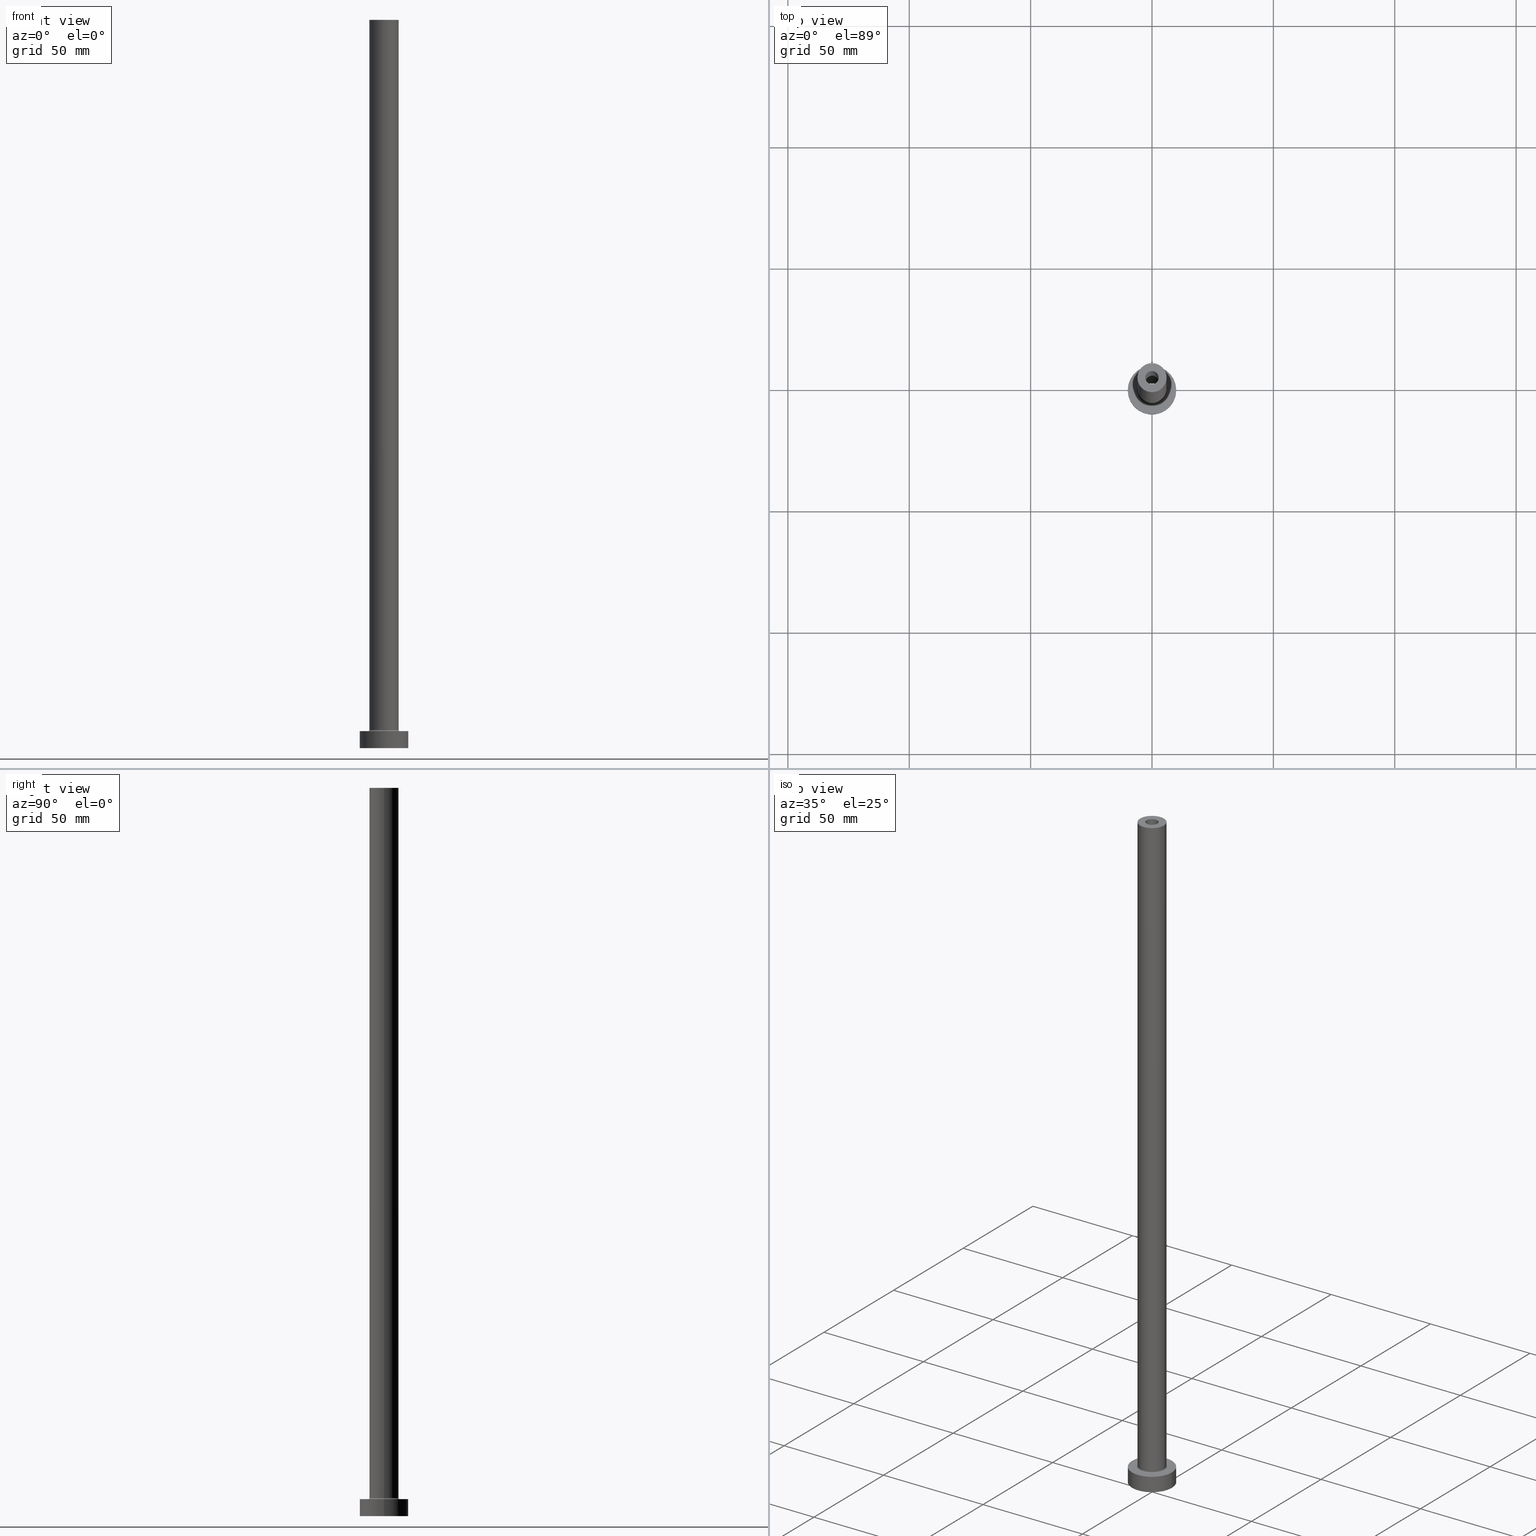
[diagram: canonical four-view strip — front | top / right | iso, engineering-drawing reading convention]
A machine part, canonical four-view strip (front | top / right | iso — engineering-drawing reading convention). The complete STEP part file that produces these views, byte-faithful:
ISO-10303-21;
HEADER;
FILE_DESCRIPTION (( 'STEP AP203' ),
    '1' );
FILE_NAME ('1d51.STEP',
    '2023-02-13T15:54:29',
    ( '' ),
    ( '' ),
    'SwSTEP 2.0',
    'SolidWorks 2019',
    '' );
FILE_SCHEMA (( 'CONFIG_CONTROL_DESIGN' ));
ENDSEC;

DATA;
#1 = VERTEX_POINT ( 'NONE', #119 ) ;
#2 = CIRCLE ( 'NONE', #319, 10.00000000000000000 ) ;
#3 = DIRECTION ( 'NONE',  ( -1.000000000000000000, 0.000000000000000000, 0.000000000000000000 ) ) ;
#4 = CARTESIAN_POINT ( 'NONE',  ( 6.000000000000000888, 7.347880794884120722E-16, 300.0000000000000000 ) ) ;
#5 = EDGE_CURVE ( 'NONE', #393, #382, #48, .T. ) ;
#6 = ORIENTED_EDGE ( 'NONE', *, *, #35, .T. ) ;
#7 = PRODUCT_DEFINITION ( 'NEZN�M�', '', #233, #377 ) ;
#8 = DIRECTION ( 'NONE',  ( -0.000000000000000000, -0.000000000000000000, -1.000000000000000000 ) ) ;
#9 = APPROVAL_PERSON_ORGANIZATION ( #197, #249, #447 ) ;
#10 = CYLINDRICAL_SURFACE ( 'NONE', #345, 2.750000000000000000 ) ;
#11 = ORIENTED_EDGE ( 'NONE', *, *, #144, .F. ) ;
#12 = DIRECTION ( 'NONE',  ( -1.000000000000000000, 0.000000000000000000, 0.000000000000000000 ) ) ;
#13 = PERSON_AND_ORGANIZATION ( #51, #128 ) ;
#14 = FACE_BOUND ( 'NONE', #344, .T. ) ;
#15 = EDGE_CURVE ( 'NONE', #341, #301, #137, .T. ) ;
#16 = DIRECTION ( 'NONE',  ( 1.000000000000000000, 0.000000000000000000, 0.000000000000000000 ) ) ;
#17 = DIRECTION ( 'NONE',  ( 0.000000000000000000, 0.000000000000000000, -1.000000000000000000 ) ) ;
#18 = PLANE ( 'NONE',  #419 ) ;
#19 = VERTEX_POINT ( 'NONE', #160 ) ;
#20 = AXIS2_PLACEMENT_3D ( 'NONE', #439, #333, #154 ) ;
#21 = DIRECTION ( 'NONE',  ( 1.000000000000000000, 0.000000000000000000, -0.000000000000000000 ) ) ;
#22 = EDGE_CURVE ( 'NONE', #371, #434, #408, .T. ) ;
#23 = DIRECTION ( 'NONE',  ( -0.000000000000000000, -0.000000000000000000, -1.000000000000000000 ) ) ;
#24 = CIRCLE ( 'NONE', #391, 0.5000000000000004441 ) ;
#25 = LOCAL_TIME ( 16, 54, 29.00000000000000000, #79 ) ;
#26 = DIRECTION ( 'NONE',  ( 0.000000000000000000, 0.000000000000000000, 1.000000000000000000 ) ) ;
#27 = DIRECTION ( 'NONE',  ( 0.000000000000000000, 0.000000000000000000, 1.000000000000000000 ) ) ;
#28 = EDGE_LOOP ( 'NONE', ( #368, #311, #276, #39 ) ) ;
#29 = DIRECTION ( 'NONE',  ( 0.000000000000000000, 0.000000000000000000, 1.000000000000000000 ) ) ;
#30 = ORIENTED_EDGE ( 'NONE', *, *, #5, .F. ) ;
#31 = FACE_OUTER_BOUND ( 'NONE', #234, .T. ) ;
#32 = CC_DESIGN_DATE_AND_TIME_ASSIGNMENT ( #40, #186, ( #7 ) ) ;
#33 = CIRCLE ( 'NONE', #109, 2.899999999999999911 ) ;
#34 = VECTOR ( 'NONE', #412, 1000.000000000000000 ) ;
#35 = EDGE_CURVE ( 'NONE', #42, #356, #357, .T. ) ;
#36 = DIRECTION ( 'NONE',  ( -1.000000000000000000, 0.000000000000000000, 0.000000000000000000 ) ) ;
#37 = DIRECTION ( 'NONE',  ( 0.000000000000000000, 0.000000000000000000, 1.000000000000000000 ) ) ;
#38 = CC_DESIGN_PERSON_AND_ORGANIZATION_ASSIGNMENT ( #427, #296, ( #83 ) ) ;
#39 = ORIENTED_EDGE ( 'NONE', *, *, #108, .F. ) ;
#40 = DATE_AND_TIME ( #152, #25 ) ;
#41 = CARTESIAN_POINT ( 'NONE',  ( 0.000000000000000000, 0.000000000000000000, 255.0000000000000000 ) ) ;
#42 = VERTEX_POINT ( 'NONE', #351 ) ;
#43 = AXIS2_PLACEMENT_3D ( 'NONE', #350, #56, #208 ) ;
#44 = FACE_OUTER_BOUND ( 'NONE', #236, .T. ) ;
#45 = DIRECTION ( 'NONE',  ( 0.000000000000000000, 0.000000000000000000, -1.000000000000000000 ) ) ;
#46 = ORIENTED_EDGE ( 'NONE', *, *, #438, .F. ) ;
#47 = EDGE_CURVE ( 'NONE', #409, #180, #426, .T. ) ;
#48 = CIRCLE ( 'NONE', #100, 6.500000000000000888 ) ;
#49 = DIRECTION ( 'NONE',  ( 0.000000000000000000, 0.000000000000000000, 1.000000000000000000 ) ) ;
#50 = ORIENTED_EDGE ( 'NONE', *, *, #219, .T. ) ;
#51 = PERSON ( 'NEUR�EN�', 'NEUR�EN�', 'NEUR�EN�', ('NEUR�EN�'), ('NEUR�EN�'), ('NEUR�EN�') ) ;
#52 = FACE_OUTER_BOUND ( 'NONE', #335, .T. ) ;
#53 = ORIENTED_EDGE ( 'NONE', *, *, #176, .F. ) ;
#54 = FACE_BOUND ( 'NONE', #295, .T. ) ;
#55 = EDGE_CURVE ( 'NONE', #171, #19, #387, .T. ) ;
#56 = DIRECTION ( 'NONE',  ( -0.000000000000000000, -0.000000000000000000, -1.000000000000000000 ) ) ;
#57 = DIRECTION ( 'NONE',  ( 1.000000000000000000, 0.000000000000000000, 0.000000000000000000 ) ) ;
#58 = FACE_OUTER_BOUND ( 'NONE', #28, .T. ) ;
#59 = CARTESIAN_POINT ( 'NONE',  ( 0.000000000000000000, 0.000000000000000000, 300.0000000000000000 ) ) ;
#60 = VECTOR ( 'NONE', #308, 1000.000000000000000 ) ;
#61 = ORIENTED_EDGE ( 'NONE', *, *, #354, .F. ) ;
#62 = DIRECTION ( 'NONE',  ( 1.000000000000000000, 0.000000000000000000, 0.000000000000000000 ) ) ;
#63 = ORIENTED_EDGE ( 'NONE', *, *, #153, .F. ) ;
#64 = CALENDAR_DATE ( 2023, 13, 2 ) ;
#65 = EDGE_CURVE ( 'NONE', #19, #171, #156, .T. ) ;
#66 = DIRECTION ( 'NONE',  ( -0.000000000000000000, -0.000000000000000000, -1.000000000000000000 ) ) ;
#67 = EDGE_LOOP ( 'NONE', ( #304, #218, #107, #61 ) ) ;
#68 = AXIS2_PLACEMENT_3D ( 'NONE', #132, #26, #274 ) ;
#69 = ADVANCED_FACE ( 'NONE', ( #204, #318 ), #18, .F. ) ;
#70 = AXIS2_PLACEMENT_3D ( 'NONE', #416, #93, #21 ) ;
#71 = DIRECTION ( 'NONE',  ( -0.000000000000000000, -0.000000000000000000, -1.000000000000000000 ) ) ;
#72 = ORIENTED_EDGE ( 'NONE', *, *, #425, .T. ) ;
#73 = AXIS2_PLACEMENT_3D ( 'NONE', #370, #8, #226 ) ;
#74 = ORIENTED_EDGE ( 'NONE', *, *, #55, .T. ) ;
#75 = APPROVAL_DATE_TIME ( #372, #430 ) ;
#76 = PRODUCT_RELATED_PRODUCT_CATEGORY ( 'detail', '', ( #256 ) ) ;
#77 = CARTESIAN_POINT ( 'NONE',  ( 0.000000000000000000, 0.000000000000000000, 7.000000000000000000 ) ) ;
#78 = DIRECTION ( 'NONE',  ( 1.000000000000000000, 0.000000000000000000, 0.000000000000000000 ) ) ;
#79 = COORDINATED_UNIVERSAL_TIME_OFFSET ( 1, 0, .AHEAD. ) ;
#80 = DIRECTION ( 'NONE',  ( 0.000000000000000000, 0.000000000000000000, 1.000000000000000000 ) ) ;
#81 =( NAMED_UNIT ( * ) SI_UNIT ( $, .STERADIAN. ) SOLID_ANGLE_UNIT ( ) );
#82 = DIRECTION ( 'NONE',  ( 1.000000000000000000, 0.000000000000000000, 0.000000000000000000 ) ) ;
#83 = SECURITY_CLASSIFICATION ( '', '', #139 ) ;
#84 = ORIENTED_EDGE ( 'NONE', *, *, #339, .T. ) ;
#85 = ADVANCED_FACE ( 'NONE', ( #275, #239 ), #126, .F. ) ;
#86 = PLANE ( 'NONE',  #260 ) ;
#87 = EDGE_LOOP ( 'NONE', ( #259, #400 ) ) ;
#88 = APPLICATION_PROTOCOL_DEFINITION ( 'international standard', 'config_control_design', 1994, #461 ) ;
#89 = DIRECTION ( 'NONE',  ( 0.000000000000000000, 0.000000000000000000, 1.000000000000000000 ) ) ;
#90 = DIRECTION ( 'NONE',  ( 0.000000000000000000, 0.000000000000000000, 1.000000000000000000 ) ) ;
#91 = DIRECTION ( 'NONE',  ( -0.000000000000000000, -0.000000000000000000, -1.000000000000000000 ) ) ;
#92 = CIRCLE ( 'NONE', #201, 6.000000000000000888 ) ;
#93 = DIRECTION ( 'NONE',  ( 0.000000000000000000, 0.000000000000000000, 1.000000000000000000 ) ) ;
#94 = CARTESIAN_POINT ( 'NONE',  ( -6.000000000000000888, 0.000000000000000000, 300.0000000000000000 ) ) ;
#95 = ORIENTED_EDGE ( 'NONE', *, *, #457, .T. ) ;
#96 = AXIS2_PLACEMENT_3D ( 'NONE', #420, #164, #213 ) ;
#97 = AXIS2_PLACEMENT_3D ( 'NONE', #220, #181, #363 ) ;
#98 = ADVANCED_FACE ( 'NONE', ( #241 ), #165, .F. ) ;
#99 = DIRECTION ( 'NONE',  ( 1.000000000000000000, 0.000000000000000000, 0.000000000000000000 ) ) ;
#100 = AXIS2_PLACEMENT_3D ( 'NONE', #436, #270, #16 ) ;
#101 = APPLICATION_CONTEXT ( 'configuration controlled 3d designs of mechanical parts and assemblies' ) ;
#102 = CARTESIAN_POINT ( 'NONE',  ( 6.000000000000000888, 7.347880794884120722E-16, 7.500000000000007105 ) ) ;
#103 = AXIS2_PLACEMENT_3D ( 'NONE', #360, #395, #36 ) ;
#104 = FACE_OUTER_BOUND ( 'NONE', #67, .T. ) ;
#105 = EDGE_LOOP ( 'NONE', ( #6, #284 ) ) ;
#106 = CALENDAR_DATE ( 2023, 13, 2 ) ;
#107 = ORIENTED_EDGE ( 'NONE', *, *, #135, .T. ) ;
#108 = EDGE_CURVE ( 'NONE', #382, #393, #258, .T. ) ;
#109 = AXIS2_PLACEMENT_3D ( 'NONE', #445, #118, #230 ) ;
#110 = CARTESIAN_POINT ( 'NONE',  ( 0.000000000000000000, 0.000000000000000000, 7.000000000000000000 ) ) ;
#111 = APPROVAL_STATUS ( 'not_yet_approved' ) ;
#112 = ORIENTED_EDGE ( 'NONE', *, *, #287, .T. ) ;
#113 = CARTESIAN_POINT ( 'NONE',  ( 0.000000000000000000, 0.000000000000000000, 7.500000000000007105 ) ) ;
#114 = EDGE_CURVE ( 'NONE', #434, #1, #442, .T. ) ;
#115 = ORIENTED_EDGE ( 'NONE', *, *, #425, .F. ) ;
#116 =( NAMED_UNIT ( * ) PLANE_ANGLE_UNIT ( ) SI_UNIT ( $, .RADIAN. ) );
#117 = VECTOR ( 'NONE', #273, 1000.000000000000000 ) ;
#118 = DIRECTION ( 'NONE',  ( 0.000000000000000000, 0.000000000000000000, 1.000000000000000000 ) ) ;
#119 = CARTESIAN_POINT ( 'NONE',  ( -2.899999999999999911, 0.000000000000000000, 0.000000000000000000 ) ) ;
#120 = CALENDAR_DATE ( 2023, 13, 2 ) ;
#121 = DIRECTION ( 'NONE',  ( 0.000000000000000000, 0.000000000000000000, 1.000000000000000000 ) ) ;
#122 = DIRECTION ( 'NONE',  ( -0.000000000000000000, -0.000000000000000000, -1.000000000000000000 ) ) ;
#123 = DIRECTION ( 'NONE',  ( 1.000000000000000000, 0.000000000000000000, -0.000000000000000000 ) ) ;
#124 = EDGE_CURVE ( 'NONE', #19, #42, #448, .T. ) ;
#125 = FACE_OUTER_BOUND ( 'NONE', #384, .T. ) ;
#126 = PLANE ( 'NONE',  #70 ) ;
#127 = DIRECTION ( 'NONE',  ( 0.000000000000000000, 0.000000000000000000, 1.000000000000000000 ) ) ;
#128 = ORGANIZATION ( 'NEUR�EN�', 'NEUR�EN�', '' ) ;
#129 = CARTESIAN_POINT ( 'NONE',  ( 0.000000000000000000, 0.000000000000000000, 7.500000000000007105 ) ) ;
#130 = DIRECTION ( 'NONE',  ( 0.000000000000000000, 0.000000000000000000, 1.000000000000000000 ) ) ;
#131 = CC_DESIGN_PERSON_AND_ORGANIZATION_ASSIGNMENT ( #13, #380, ( #256 ) ) ;
#132 = CARTESIAN_POINT ( 'NONE',  ( 0.000000000000000000, 0.000000000000000000, 7.500000000000007105 ) ) ;
#133 = CIRCLE ( 'NONE', #246, 0.5000000000000004441 ) ;
#134 = ORIENTED_EDGE ( 'NONE', *, *, #124, .T. ) ;
#135 = EDGE_CURVE ( 'NONE', #440, #389, #359, .T. ) ;
#136 = LINE ( 'NONE', #297, #346 ) ;
#137 = CIRCLE ( 'NONE', #266, 10.00000000000000000 ) ;
#138 = EDGE_LOOP ( 'NONE', ( #166, #231, #148, #431 ) ) ;
#139 = SECURITY_CLASSIFICATION_LEVEL ( 'unclassified' ) ;
#140 = CARTESIAN_POINT ( 'NONE',  ( 0.000000000000000000, 0.000000000000000000, 0.000000000000000000 ) ) ;
#141 = AXIS2_PLACEMENT_3D ( 'NONE', #235, #49, #200 ) ;
#142 = PERSON_AND_ORGANIZATION_ROLE ( 'creator' ) ;
#143 = ADVANCED_BREP_SHAPE_REPRESENTATION ( '1d51', ( #199, #422 ), #429 ) ;
#144 = EDGE_CURVE ( 'NONE', #267, #1, #364, .T. ) ;
#145 = CLOSED_SHELL ( 'NONE', ( #278, #162, #323, #418, #390, #396, #291, #69, #332, #237, #348, #401, #85, #98 ) ) ;
#146 = ORIENTED_EDGE ( 'NONE', *, *, #114, .T. ) ;
#147 = COORDINATED_UNIVERSAL_TIME_OFFSET ( 1, 0, .AHEAD. ) ;
#148 = ORIENTED_EDGE ( 'NONE', *, *, #144, .T. ) ;
#149 = CIRCLE ( 'NONE', #300, 2.750000000000000000 ) ;
#150 = CARTESIAN_POINT ( 'NONE',  ( 10.00000000000000000, 1.224646799147353256E-15, 0.000000000000000000 ) ) ;
#151 = ORIENTED_EDGE ( 'NONE', *, *, #209, .F. ) ;
#152 = CALENDAR_DATE ( 2023, 13, 2 ) ;
#153 = EDGE_CURVE ( 'NONE', #356, #42, #149, .T. ) ;
#154 = DIRECTION ( 'NONE',  ( -1.000000000000000000, 0.000000000000000000, 0.000000000000000000 ) ) ;
#155 = ORIENTED_EDGE ( 'NONE', *, *, #367, .T. ) ;
#156 = CIRCLE ( 'NONE', #228, 2.750000000000000000 ) ;
#157 = CARTESIAN_POINT ( 'NONE',  ( 10.00000000000000000, 1.224646799147353256E-15, 7.000000000000000000 ) ) ;
#158 = APPROVAL_STATUS ( 'not_yet_approved' ) ;
#159 = CIRCLE ( 'NONE', #292, 10.00000000000000000 ) ;
#160 = CARTESIAN_POINT ( 'NONE',  ( -2.750000000000000000, 0.000000000000000000, 300.0000000000000000 ) ) ;
#161 = DIRECTION ( 'NONE',  ( 0.000000000000000000, 0.000000000000000000, -1.000000000000000000 ) ) ;
#162 = ADVANCED_FACE ( 'NONE', ( #187 ), #265, .F. ) ;
#163 = ORIENTED_EDGE ( 'NONE', *, *, #35, .F. ) ;
#164 = DIRECTION ( 'NONE',  ( -0.000000000000000000, -0.000000000000000000, -1.000000000000000000 ) ) ;
#165 = CYLINDRICAL_SURFACE ( 'NONE', #20, 2.750000000000000000 ) ;
#166 = ORIENTED_EDGE ( 'NONE', *, *, #227, .T. ) ;
#167 = AXIS2_PLACEMENT_3D ( 'NONE', #451, #45, #12 ) ;
#168 = VECTOR ( 'NONE', #253, 1000.000000000000000 ) ;
#169 = EDGE_CURVE ( 'NONE', #389, #382, #24, .T. ) ;
#170 = CARTESIAN_POINT ( 'NONE',  ( -6.000000000000000888, 0.000000000000000000, 7.500000000000007105 ) ) ;
#171 = VERTEX_POINT ( 'NONE', #405 ) ;
#172 = CARTESIAN_POINT ( 'NONE',  ( -10.00000000000000000, 0.000000000000000000, 7.000000000000000000 ) ) ;
#173 = ORIENTED_EDGE ( 'NONE', *, *, #261, .F. ) ;
#174 = DIRECTION ( 'NONE',  ( 0.000000000000000000, 0.000000000000000000, -1.000000000000000000 ) ) ;
#175 = AXIS2_PLACEMENT_3D ( 'NONE', #113, #238, #315 ) ;
#176 = EDGE_CURVE ( 'NONE', #371, #267, #303, .T. ) ;
#177 = ORIENTED_EDGE ( 'NONE', *, *, #15, .F. ) ;
#178 = CC_DESIGN_APPROVAL ( #430, ( #7 ) ) ;
#179 = CYLINDRICAL_SURFACE ( 'NONE', #217, 6.000000000000000888 ) ;
#180 = VERTEX_POINT ( 'NONE', #269 ) ;
#181 = DIRECTION ( 'NONE',  ( -0.000000000000000000, -0.000000000000000000, -1.000000000000000000 ) ) ;
#182 = COORDINATED_UNIVERSAL_TIME_OFFSET ( 1, 0, .AHEAD. ) ;
#183 = DIRECTION ( 'NONE',  ( 1.000000000000000000, 0.000000000000000000, 0.000000000000000000 ) ) ;
#184 = CC_DESIGN_DATE_AND_TIME_ASSIGNMENT ( #252, #444, ( #83 ) ) ;
#185 = VERTEX_POINT ( 'NONE', #150 ) ;
#186 = DATE_TIME_ROLE ( 'creation_date' ) ;
#187 = FACE_OUTER_BOUND ( 'NONE', #138, .T. ) ;
#188 = UNCERTAINTY_MEASURE_WITH_UNIT (LENGTH_MEASURE( 1.000000000000000082E-05 ), #264, 'distance_accuracy_value', 'NONE');
#189 = DATE_AND_TIME ( #120, #302 ) ;
#190 = AXIS2_PLACEMENT_3D ( 'NONE', #129, #127, #62 ) ;
#191 = CIRCLE ( 'NONE', #97, 2.899999999999999911 ) ;
#192 = APPROVAL_ROLE ( '' ) ;
#193 = CARTESIAN_POINT ( 'NONE',  ( 0.000000000000000000, 0.000000000000000000, 300.0000000000000000 ) ) ;
#194 = EDGE_LOOP ( 'NONE', ( #46, #11 ) ) ;
#195 = DIRECTION ( 'NONE',  ( 1.000000000000000000, 0.000000000000000000, 0.000000000000000000 ) ) ;
#196 = ORIENTED_EDGE ( 'NONE', *, *, #22, .T. ) ;
#197 = PERSON_AND_ORGANIZATION ( #51, #128 ) ;
#198 = AXIS2_PLACEMENT_3D ( 'NONE', #281, #130, #349 ) ;
#199 = MANIFOLD_SOLID_BREP ( 'Odebrat vysunut�m4', #145 ) ;
#200 = DIRECTION ( 'NONE',  ( 1.000000000000000000, 0.000000000000000000, 0.000000000000000000 ) ) ;
#201 = AXIS2_PLACEMENT_3D ( 'NONE', #352, #29, #240 ) ;
#202 = CARTESIAN_POINT ( 'NONE',  ( 2.899999999999999911, 3.551475717527323832E-16, 0.000000000000000000 ) ) ;
#203 = CIRCLE ( 'NONE', #336, 10.00000000000000000 ) ;
#204 = FACE_BOUND ( 'NONE', #194, .T. ) ;
#205 = ORIENTED_EDGE ( 'NONE', *, *, #287, .F. ) ;
#206 = CARTESIAN_POINT ( 'NONE',  ( -6.500000000000000888, 7.960204194457796463E-16, 7.000000000000002665 ) ) ;
#207 = DIRECTION ( 'NONE',  ( 0.000000000000000000, 0.000000000000000000, 1.000000000000000000 ) ) ;
#208 = DIRECTION ( 'NONE',  ( -1.000000000000000000, 0.000000000000000000, 0.000000000000000000 ) ) ;
#209 = EDGE_CURVE ( 'NONE', #301, #341, #159, .T. ) ;
#210 = PLANE ( 'NONE',  #446 ) ;
#211 = APPROVAL_PERSON_ORGANIZATION ( #437, #257, #192 ) ;
#212 = EDGE_LOOP ( 'NONE', ( #268, #177, #112, #95 ) ) ;
#213 = DIRECTION ( 'NONE',  ( -1.000000000000000000, 0.000000000000000000, 0.000000000000000000 ) ) ;
#214 = ORIENTED_EDGE ( 'NONE', *, *, #65, .T. ) ;
#215 = DIRECTION ( 'NONE',  ( -1.000000000000000000, 0.000000000000000000, 0.000000000000000000 ) ) ;
#216 = PERSON_AND_ORGANIZATION ( #51, #128 ) ;
#217 = AXIS2_PLACEMENT_3D ( 'NONE', #326, #71, #3 ) ;
#218 = ORIENTED_EDGE ( 'NONE', *, *, #450, .T. ) ;
#219 = EDGE_CURVE ( 'NONE', #301, #185, #340, .T. ) ;
#220 = CARTESIAN_POINT ( 'NONE',  ( 0.000000000000000000, 0.000000000000000000, 0.000000000000000000 ) ) ;
#221 = ORIENTED_EDGE ( 'NONE', *, *, #124, .F. ) ;
#222 = APPROVAL_DATE_TIME ( #189, #249 ) ;
#223 = ORIENTED_EDGE ( 'NONE', *, *, #5, .T. ) ;
#224 = COORDINATED_UNIVERSAL_TIME_OFFSET ( 1, 0, .AHEAD. ) ;
#225 = PERSON_AND_ORGANIZATION ( #51, #128 ) ;
#226 = DIRECTION ( 'NONE',  ( 1.000000000000000000, 0.000000000000000000, 0.000000000000000000 ) ) ;
#227 = EDGE_CURVE ( 'NONE', #434, #371, #33, .T. ) ;
#228 = AXIS2_PLACEMENT_3D ( 'NONE', #59, #207, #455 ) ;
#229 = CARTESIAN_POINT ( 'NONE',  ( 0.000000000000000000, 0.000000000000000000, 255.0000000000000000 ) ) ;
#230 = DIRECTION ( 'NONE',  ( 1.000000000000000000, 0.000000000000000000, 0.000000000000000000 ) ) ;
#231 = ORIENTED_EDGE ( 'NONE', *, *, #176, .T. ) ;
#232 = AXIS2_PLACEMENT_3D ( 'NONE', #77, #122, #376 ) ;
#233 = PRODUCT_DEFINITION_FORMATION_WITH_SPECIFIED_SOURCE ( 'LIBOVOLN�', '', #256, .NOT_KNOWN. ) ;
#234 = EDGE_LOOP ( 'NONE', ( #247, #397 ) ) ;
#235 = CARTESIAN_POINT ( 'NONE',  ( 0.000000000000000000, 0.000000000000000000, 7.500000000000007105 ) ) ;
#236 = EDGE_LOOP ( 'NONE', ( #84, #245 ) ) ;
#237 = ADVANCED_FACE ( 'NONE', ( #14, #44 ), #86, .T. ) ;
#238 = DIRECTION ( 'NONE',  ( 0.000000000000000000, 0.000000000000000000, 1.000000000000000000 ) ) ;
#239 = FACE_OUTER_BOUND ( 'NONE', #87, .T. ) ;
#240 = DIRECTION ( 'NONE',  ( 1.000000000000000000, 0.000000000000000000, 0.000000000000000000 ) ) ;
#241 = FACE_OUTER_BOUND ( 'NONE', #456, .T. ) ;
#242 = CARTESIAN_POINT ( 'NONE',  ( 6.500000000000000888, 0.000000000000000000, 7.000000000000002665 ) ) ;
#243 = CYLINDRICAL_SURFACE ( 'NONE', #96, 6.000000000000000888 ) ;
#244 = DIRECTION ( 'NONE',  ( 1.000000000000000000, 0.000000000000000000, 0.000000000000000000 ) ) ;
#245 = ORIENTED_EDGE ( 'NONE', *, *, #47, .T. ) ;
#246 = AXIS2_PLACEMENT_3D ( 'NONE', #322, #325, #174 ) ;
#247 = ORIENTED_EDGE ( 'NONE', *, *, #15, .T. ) ;
#248 = FACE_OUTER_BOUND ( 'NONE', #443, .T. ) ;
#249 = APPROVAL ( #158, 'NEUR�EN�' ) ;
#250 = CYLINDRICAL_SURFACE ( 'NONE', #103, 2.899999999999999911 ) ;
#251 = EDGE_LOOP ( 'NONE', ( #453, #353 ) ) ;
#252 = DATE_AND_TIME ( #64, #399 ) ;
#253 = DIRECTION ( 'NONE',  ( -0.000000000000000000, -0.000000000000000000, -1.000000000000000000 ) ) ;
#254 = LOCAL_TIME ( 16, 54, 29.00000000000000000, #147 ) ;
#255 = ORIENTED_EDGE ( 'NONE', *, *, #108, .T. ) ;
#256 = PRODUCT ( '1d51', '1d51', '', ( #342 ) ) ;
#257 = APPROVAL ( #111, 'NEUR�EN�' ) ;
#258 = CIRCLE ( 'NONE', #232, 6.500000000000000888 ) ;
#259 = ORIENTED_EDGE ( 'NONE', *, *, #227, .F. ) ;
#260 = AXIS2_PLACEMENT_3D ( 'NONE', #193, #89, #337 ) ;
#261 = EDGE_CURVE ( 'NONE', #389, #440, #421, .T. ) ;
#262 = DIRECTION ( 'NONE',  ( -1.000000000000000000, 1.224646799147351482E-16, 0.000000000000000000 ) ) ;
#263 = ORIENTED_EDGE ( 'NONE', *, *, #450, .F. ) ;
#264 =( LENGTH_UNIT ( ) NAMED_UNIT ( * ) SI_UNIT ( .MILLI., .METRE. ) );
#265 = CYLINDRICAL_SURFACE ( 'NONE', #167, 2.899999999999999911 ) ;
#266 = AXIS2_PLACEMENT_3D ( 'NONE', #110, #406, #78 ) ;
#267 = VERTEX_POINT ( 'NONE', #202 ) ;
#268 = ORIENTED_EDGE ( 'NONE', *, *, #219, .F. ) ;
#269 = CARTESIAN_POINT ( 'NONE',  ( -6.000000000000000888, 0.000000000000000000, 300.0000000000000000 ) ) ;
#270 = DIRECTION ( 'NONE',  ( -0.000000000000000000, -0.000000000000000000, -1.000000000000000000 ) ) ;
#271 = CC_DESIGN_PERSON_AND_ORGANIZATION_ASSIGNMENT ( #288, #328, ( #233 ) ) ;
#272 = DIRECTION ( 'NONE',  ( 1.000000000000000000, 0.000000000000000000, 0.000000000000000000 ) ) ;
#273 = DIRECTION ( 'NONE',  ( 0.000000000000000000, 0.000000000000000000, -1.000000000000000000 ) ) ;
#274 = DIRECTION ( 'NONE',  ( 1.000000000000000000, 0.000000000000000000, 0.000000000000000000 ) ) ;
#275 = FACE_BOUND ( 'NONE', #105, .T. ) ;
#276 = ORIENTED_EDGE ( 'NONE', *, *, #309, .T. ) ;
#277 = VECTOR ( 'NONE', #91, 1000.000000000000000 ) ;
#278 = ADVANCED_FACE ( 'NONE', ( #52 ), #10, .F. ) ;
#279 = DIRECTION ( 'NONE',  ( 0.000000000000000000, 0.000000000000000000, 1.000000000000000000 ) ) ;
#280 = CARTESIAN_POINT ( 'NONE',  ( 0.000000000000000000, 0.000000000000000000, 7.000000000000000000 ) ) ;
#281 = CARTESIAN_POINT ( 'NONE',  ( 0.000000000000000000, 0.000000000000000000, 300.0000000000000000 ) ) ;
#282 = AXIS2_PLACEMENT_3D ( 'NONE', #229, #27, #57 ) ;
#283 = CARTESIAN_POINT ( 'NONE',  ( 0.000000000000000000, 0.000000000000000000, 0.000000000000000000 ) ) ;
#284 = ORIENTED_EDGE ( 'NONE', *, *, #153, .T. ) ;
#285 = LINE ( 'NONE', #94, #334 ) ;
#286 = APPROVAL_PERSON_ORGANIZATION ( #331, #430, #375 ) ;
#287 = EDGE_CURVE ( 'NONE', #341, #424, #355, .T. ) ;
#288 = PERSON_AND_ORGANIZATION ( #51, #128 ) ;
#289 = CARTESIAN_POINT ( 'NONE',  ( -2.899999999999999911, 0.000000000000000000, 255.0000000000000000 ) ) ;
#290 = APPROVAL_DATE_TIME ( #294, #257 ) ;
#291 = ADVANCED_FACE ( 'NONE', ( #54, #31 ), #210, .T. ) ;
#292 = AXIS2_PLACEMENT_3D ( 'NONE', #407, #80, #195 ) ;
#293 = CC_DESIGN_SECURITY_CLASSIFICATION ( #83, ( #233 ) ) ;
#294 = DATE_AND_TIME ( #106, #435 ) ;
#295 = EDGE_LOOP ( 'NONE', ( #223, #255 ) ) ;
#296 = PERSON_AND_ORGANIZATION_ROLE ( 'classification_officer' ) ;
#297 = CARTESIAN_POINT ( 'NONE',  ( 2.750000000000000000, 3.367778697655220519E-16, 300.0000000000000000 ) ) ;
#298 = AXIS2_PLACEMENT_3D ( 'NONE', #386, #449, #244 ) ;
#299 = APPROVAL_STATUS ( 'not_yet_approved' ) ;
#300 = AXIS2_PLACEMENT_3D ( 'NONE', #41, #313, #82 ) ;
#301 = VERTEX_POINT ( 'NONE', #321 ) ;
#302 = LOCAL_TIME ( 16, 54, 29.00000000000000000, #224 ) ;
#303 = LINE ( 'NONE', #381, #34 ) ;
#304 = ORIENTED_EDGE ( 'NONE', *, *, #47, .F. ) ;
#305 = SHAPE_DEFINITION_REPRESENTATION ( #329, #143 ) ;
#306 = CALENDAR_DATE ( 2023, 13, 2 ) ;
#307 = AXIS2_PLACEMENT_3D ( 'NONE', #388, #90, #314 ) ;
#308 = DIRECTION ( 'NONE',  ( -0.000000000000000000, -0.000000000000000000, -1.000000000000000000 ) ) ;
#309 = EDGE_CURVE ( 'NONE', #440, #393, #133, .T. ) ;
#310 = CC_DESIGN_APPROVAL ( #249, ( #83 ) ) ;
#311 = ORIENTED_EDGE ( 'NONE', *, *, #135, .F. ) ;
#312 = VECTOR ( 'NONE', #161, 1000.000000000000000 ) ;
#313 = DIRECTION ( 'NONE',  ( 0.000000000000000000, 0.000000000000000000, 1.000000000000000000 ) ) ;
#314 = DIRECTION ( 'NONE',  ( 1.000000000000000000, 0.000000000000000000, 0.000000000000000000 ) ) ;
#315 = DIRECTION ( 'NONE',  ( 1.000000000000000000, 0.000000000000000000, 0.000000000000000000 ) ) ;
#316 = ORIENTED_EDGE ( 'NONE', *, *, #309, .F. ) ;
#317 = DIRECTION ( 'NONE',  ( 1.000000000000000000, 0.000000000000000000, -0.000000000000000000 ) ) ;
#318 = FACE_OUTER_BOUND ( 'NONE', #251, .T. ) ;
#319 = AXIS2_PLACEMENT_3D ( 'NONE', #283, #383, #99 ) ;
#320 = CARTESIAN_POINT ( 'NONE',  ( 2.899999999999999911, 3.551475717527323832E-16, 255.0000000000000000 ) ) ;
#321 = CARTESIAN_POINT ( 'NONE',  ( 10.00000000000000000, 1.224646799147353256E-15, 7.000000000000000000 ) ) ;
#322 = CARTESIAN_POINT ( 'NONE',  ( 6.500000000000000888, 0.000000000000000000, 7.500000000000007105 ) ) ;
#323 = ADVANCED_FACE ( 'NONE', ( #385 ), #402, .F. ) ;
#324 = ORIENTED_EDGE ( 'NONE', *, *, #438, .T. ) ;
#325 = DIRECTION ( 'NONE',  ( 0.000000000000000000, -1.000000000000000000, 0.000000000000000000 ) ) ;
#326 = CARTESIAN_POINT ( 'NONE',  ( 0.000000000000000000, 0.000000000000000000, 300.0000000000000000 ) ) ;
#327 = LINE ( 'NONE', #4, #168 ) ;
#328 = PERSON_AND_ORGANIZATION_ROLE ( 'design_supplier' ) ;
#329 = PRODUCT_DEFINITION_SHAPE ( 'NONE', 'NONE',  #7 ) ;
#330 = CARTESIAN_POINT ( 'NONE',  ( -10.00000000000000000, 0.000000000000000000, 0.000000000000000000 ) ) ;
#331 = PERSON_AND_ORGANIZATION ( #51, #128 ) ;
#332 = ADVANCED_FACE ( 'NONE', ( #125 ), #243, .T. ) ;
#333 = DIRECTION ( 'NONE',  ( 0.000000000000000000, 0.000000000000000000, -1.000000000000000000 ) ) ;
#334 = VECTOR ( 'NONE', #23, 1000.000000000000000 ) ;
#335 = EDGE_LOOP ( 'NONE', ( #214, #72, #163, #221 ) ) ;
#336 = AXIS2_PLACEMENT_3D ( 'NONE', #140, #37, #183 ) ;
#337 = DIRECTION ( 'NONE',  ( 1.000000000000000000, 0.000000000000000000, -0.000000000000000000 ) ) ;
#338 = ORIENTED_EDGE ( 'NONE', *, *, #354, .T. ) ;
#339 = EDGE_CURVE ( 'NONE', #180, #409, #92, .T. ) ;
#340 = LINE ( 'NONE', #157, #60 ) ;
#341 = VERTEX_POINT ( 'NONE', #172 ) ;
#342 = MECHANICAL_CONTEXT ( 'NONE', #461, 'mechanical' ) ;
#343 = CARTESIAN_POINT ( 'NONE',  ( -2.750000000000000000, 0.000000000000000000, 300.0000000000000000 ) ) ;
#344 = EDGE_LOOP ( 'NONE', ( #361, #411 ) ) ;
#345 = AXIS2_PLACEMENT_3D ( 'NONE', #347, #17, #415 ) ;
#346 = VECTOR ( 'NONE', #433, 1000.000000000000000 ) ;
#347 = CARTESIAN_POINT ( 'NONE',  ( 0.000000000000000000, 0.000000000000000000, 300.0000000000000000 ) ) ;
#348 = ADVANCED_FACE ( 'NONE', ( #58 ), #417, .F. ) ;
#349 = DIRECTION ( 'NONE',  ( 1.000000000000000000, 0.000000000000000000, 0.000000000000000000 ) ) ;
#350 = CARTESIAN_POINT ( 'NONE',  ( 0.000000000000000000, 0.000000000000000000, 7.000000000000000000 ) ) ;
#351 = CARTESIAN_POINT ( 'NONE',  ( -2.750000000000000000, 0.000000000000000000, 255.0000000000000000 ) ) ;
#352 = CARTESIAN_POINT ( 'NONE',  ( 0.000000000000000000, 0.000000000000000000, 300.0000000000000000 ) ) ;
#353 = ORIENTED_EDGE ( 'NONE', *, *, #367, .F. ) ;
#354 = EDGE_CURVE ( 'NONE', #180, #389, #285, .T. ) ;
#355 = LINE ( 'NONE', #392, #277 ) ;
#356 = VERTEX_POINT ( 'NONE', #423 ) ;
#357 = CIRCLE ( 'NONE', #298, 2.750000000000000000 ) ;
#358 = FACE_OUTER_BOUND ( 'NONE', #212, .T. ) ;
#359 = CIRCLE ( 'NONE', #175, 6.000000000000000888 ) ;
#360 = CARTESIAN_POINT ( 'NONE',  ( 0.000000000000000000, 0.000000000000000000, 263.2024386617639493 ) ) ;
#361 = ORIENTED_EDGE ( 'NONE', *, *, #65, .F. ) ;
#362 = FACE_OUTER_BOUND ( 'NONE', #373, .T. ) ;
#363 = DIRECTION ( 'NONE',  ( 1.000000000000000000, 0.000000000000000000, 0.000000000000000000 ) ) ;
#364 = CIRCLE ( 'NONE', #73, 2.899999999999999911 ) ;
#365 = CC_DESIGN_APPROVAL ( #257, ( #233 ) ) ;
#366 = ORIENTED_EDGE ( 'NONE', *, *, #339, .F. ) ;
#367 = EDGE_CURVE ( 'NONE', #185, #424, #2, .T. ) ;
#368 = ORIENTED_EDGE ( 'NONE', *, *, #169, .F. ) ;
#369 = PERSON_AND_ORGANIZATION_ROLE ( 'creator' ) ;
#370 = CARTESIAN_POINT ( 'NONE',  ( 0.000000000000000000, 0.000000000000000000, 0.000000000000000000 ) ) ;
#371 = VERTEX_POINT ( 'NONE', #320 ) ;
#372 = DATE_AND_TIME ( #306, #254 ) ;
#373 = EDGE_LOOP ( 'NONE', ( #53, #196, #146, #324 ) ) ;
#374 = CC_DESIGN_PERSON_AND_ORGANIZATION_ASSIGNMENT ( #225, #369, ( #7 ) ) ;
#375 = APPROVAL_ROLE ( '' ) ;
#376 = DIRECTION ( 'NONE',  ( 1.000000000000000000, 0.000000000000000000, 0.000000000000000000 ) ) ;
#377 = DESIGN_CONTEXT ( 'detailed design', #101, 'design' ) ;
#378 = ORIENTED_EDGE ( 'NONE', *, *, #169, .T. ) ;
#379 = CARTESIAN_POINT ( 'NONE',  ( -6.500000000000000888, 7.960204194457796463E-16, 7.500000000000007105 ) ) ;
#380 = PERSON_AND_ORGANIZATION_ROLE ( 'design_owner' ) ;
#381 = CARTESIAN_POINT ( 'NONE',  ( 2.899999999999999911, 3.551475717527323832E-16, 263.2024386617639493 ) ) ;
#382 = VERTEX_POINT ( 'NONE', #206 ) ;
#383 = DIRECTION ( 'NONE',  ( 0.000000000000000000, 0.000000000000000000, 1.000000000000000000 ) ) ;
#384 = EDGE_LOOP ( 'NONE', ( #263, #366, #338, #460 ) ) ;
#385 = FACE_OUTER_BOUND ( 'NONE', #403, .T. ) ;
#386 = CARTESIAN_POINT ( 'NONE',  ( 0.000000000000000000, 0.000000000000000000, 255.0000000000000000 ) ) ;
#387 = CIRCLE ( 'NONE', #307, 2.750000000000000000 ) ;
#388 = CARTESIAN_POINT ( 'NONE',  ( 0.000000000000000000, 0.000000000000000000, 300.0000000000000000 ) ) ;
#389 = VERTEX_POINT ( 'NONE', #170 ) ;
#390 = ADVANCED_FACE ( 'NONE', ( #248 ), #454, .T. ) ;
#391 = AXIS2_PLACEMENT_3D ( 'NONE', #379, #413, #262 ) ;
#392 = CARTESIAN_POINT ( 'NONE',  ( -10.00000000000000000, 0.000000000000000000, 7.000000000000000000 ) ) ;
#393 = VERTEX_POINT ( 'NONE', #242 ) ;
#394 = CARTESIAN_POINT ( 'NONE',  ( 0.000000000000000000, 0.000000000000000000, 7.000000000000000000 ) ) ;
#395 = DIRECTION ( 'NONE',  ( 0.000000000000000000, 0.000000000000000000, -1.000000000000000000 ) ) ;
#396 = ADVANCED_FACE ( 'NONE', ( #358 ), #458, .T. ) ;
#397 = ORIENTED_EDGE ( 'NONE', *, *, #209, .T. ) ;
#398 = AXIS2_PLACEMENT_3D ( 'NONE', #280, #66, #215 ) ;
#399 = LOCAL_TIME ( 16, 54, 29.00000000000000000, #432 ) ;
#400 = ORIENTED_EDGE ( 'NONE', *, *, #22, .F. ) ;
#401 = ADVANCED_FACE ( 'NONE', ( #362 ), #250, .F. ) ;
#402 = TOROIDAL_SURFACE ( 'NONE', #190, 6.500000000000000888, 0.5000000000000000000 ) ;
#403 = EDGE_LOOP ( 'NONE', ( #173, #378, #30, #316 ) ) ;
#404 = APPLICATION_PROTOCOL_DEFINITION ( 'international standard', 'config_control_design', 1994, #101 ) ;
#405 = CARTESIAN_POINT ( 'NONE',  ( 2.750000000000000000, 3.367778697655220519E-16, 300.0000000000000000 ) ) ;
#406 = DIRECTION ( 'NONE',  ( 0.000000000000000000, 0.000000000000000000, 1.000000000000000000 ) ) ;
#407 = CARTESIAN_POINT ( 'NONE',  ( 0.000000000000000000, 0.000000000000000000, 7.000000000000000000 ) ) ;
#408 = CIRCLE ( 'NONE', #282, 2.899999999999999911 ) ;
#409 = VERTEX_POINT ( 'NONE', #428 ) ;
#410 = CARTESIAN_POINT ( 'NONE',  ( -2.899999999999999911, 0.000000000000000000, 263.2024386617639493 ) ) ;
#411 = ORIENTED_EDGE ( 'NONE', *, *, #55, .F. ) ;
#412 = DIRECTION ( 'NONE',  ( 0.000000000000000000, 0.000000000000000000, -1.000000000000000000 ) ) ;
#413 = DIRECTION ( 'NONE',  ( 1.224646799147353207E-16, 1.000000000000000000, -0.000000000000000000 ) ) ;
#414 = CC_DESIGN_PERSON_AND_ORGANIZATION_ASSIGNMENT ( #216, #142, ( #233 ) ) ;
#415 = DIRECTION ( 'NONE',  ( -1.000000000000000000, 0.000000000000000000, 0.000000000000000000 ) ) ;
#416 = CARTESIAN_POINT ( 'NONE',  ( 0.000000000000000000, 0.000000000000000000, 255.0000000000000000 ) ) ;
#417 = TOROIDAL_SURFACE ( 'NONE', #68, 6.500000000000000888, 0.5000000000000000000 ) ;
#418 = ADVANCED_FACE ( 'NONE', ( #104 ), #179, .T. ) ;
#419 = AXIS2_PLACEMENT_3D ( 'NONE', #452, #459, #123 ) ;
#420 = CARTESIAN_POINT ( 'NONE',  ( 0.000000000000000000, 0.000000000000000000, 300.0000000000000000 ) ) ;
#421 = CIRCLE ( 'NONE', #141, 6.000000000000000888 ) ;
#422 = AXIS2_PLACEMENT_3D ( 'NONE', #441, #121, #272 ) ;
#423 = CARTESIAN_POINT ( 'NONE',  ( 2.750000000000000000, 3.367778697655220519E-16, 255.0000000000000000 ) ) ;
#424 = VERTEX_POINT ( 'NONE', #330 ) ;
#425 = EDGE_CURVE ( 'NONE', #171, #356, #136, .T. ) ;
#426 = CIRCLE ( 'NONE', #198, 6.000000000000000888 ) ;
#427 = PERSON_AND_ORGANIZATION ( #51, #128 ) ;
#428 = CARTESIAN_POINT ( 'NONE',  ( 6.000000000000000888, 7.347880794884120722E-16, 300.0000000000000000 ) ) ;
#429 =( GEOMETRIC_REPRESENTATION_CONTEXT ( 3 ) GLOBAL_UNCERTAINTY_ASSIGNED_CONTEXT ( ( #188 ) ) GLOBAL_UNIT_ASSIGNED_CONTEXT ( ( #264, #116, #81 ) ) REPRESENTATION_CONTEXT ( 'NONE', 'WORKASPACE' ) );
#430 = APPROVAL ( #299, 'NEUR�EN�' ) ;
#431 = ORIENTED_EDGE ( 'NONE', *, *, #114, .F. ) ;
#432 = COORDINATED_UNIVERSAL_TIME_OFFSET ( 1, 0, .AHEAD. ) ;
#433 = DIRECTION ( 'NONE',  ( 0.000000000000000000, 0.000000000000000000, -1.000000000000000000 ) ) ;
#434 = VERTEX_POINT ( 'NONE', #289 ) ;
#435 = LOCAL_TIME ( 16, 54, 29.00000000000000000, #182 ) ;
#436 = CARTESIAN_POINT ( 'NONE',  ( 0.000000000000000000, 0.000000000000000000, 7.000000000000000000 ) ) ;
#437 = PERSON_AND_ORGANIZATION ( #51, #128 ) ;
#438 = EDGE_CURVE ( 'NONE', #1, #267, #191, .T. ) ;
#439 = CARTESIAN_POINT ( 'NONE',  ( 0.000000000000000000, 0.000000000000000000, 300.0000000000000000 ) ) ;
#440 = VERTEX_POINT ( 'NONE', #102 ) ;
#441 = CARTESIAN_POINT ( 'NONE',  ( 0.000000000000000000, 0.000000000000000000, 0.000000000000000000 ) ) ;
#442 = LINE ( 'NONE', #410, #117 ) ;
#443 = EDGE_LOOP ( 'NONE', ( #151, #50, #155, #205 ) ) ;
#444 = DATE_TIME_ROLE ( 'classification_date' ) ;
#445 = CARTESIAN_POINT ( 'NONE',  ( 0.000000000000000000, 0.000000000000000000, 255.0000000000000000 ) ) ;
#446 = AXIS2_PLACEMENT_3D ( 'NONE', #394, #279, #317 ) ;
#447 = APPROVAL_ROLE ( '' ) ;
#448 = LINE ( 'NONE', #343, #312 ) ;
#449 = DIRECTION ( 'NONE',  ( 0.000000000000000000, 0.000000000000000000, 1.000000000000000000 ) ) ;
#450 = EDGE_CURVE ( 'NONE', #409, #440, #327, .T. ) ;
#451 = CARTESIAN_POINT ( 'NONE',  ( 0.000000000000000000, 0.000000000000000000, 263.2024386617639493 ) ) ;
#452 = CARTESIAN_POINT ( 'NONE',  ( 0.000000000000000000, 0.000000000000000000, 0.000000000000000000 ) ) ;
#453 = ORIENTED_EDGE ( 'NONE', *, *, #457, .F. ) ;
#454 = CYLINDRICAL_SURFACE ( 'NONE', #398, 10.00000000000000000 ) ;
#455 = DIRECTION ( 'NONE',  ( 1.000000000000000000, 0.000000000000000000, 0.000000000000000000 ) ) ;
#456 = EDGE_LOOP ( 'NONE', ( #115, #74, #134, #63 ) ) ;
#457 = EDGE_CURVE ( 'NONE', #424, #185, #203, .T. ) ;
#458 = CYLINDRICAL_SURFACE ( 'NONE', #43, 10.00000000000000000 ) ;
#459 = DIRECTION ( 'NONE',  ( 0.000000000000000000, 0.000000000000000000, 1.000000000000000000 ) ) ;
#460 = ORIENTED_EDGE ( 'NONE', *, *, #261, .T. ) ;
#461 = APPLICATION_CONTEXT ( 'configuration controlled 3d designs of mechanical parts and assemblies' ) ;
ENDSEC;
END-ISO-10303-21;
